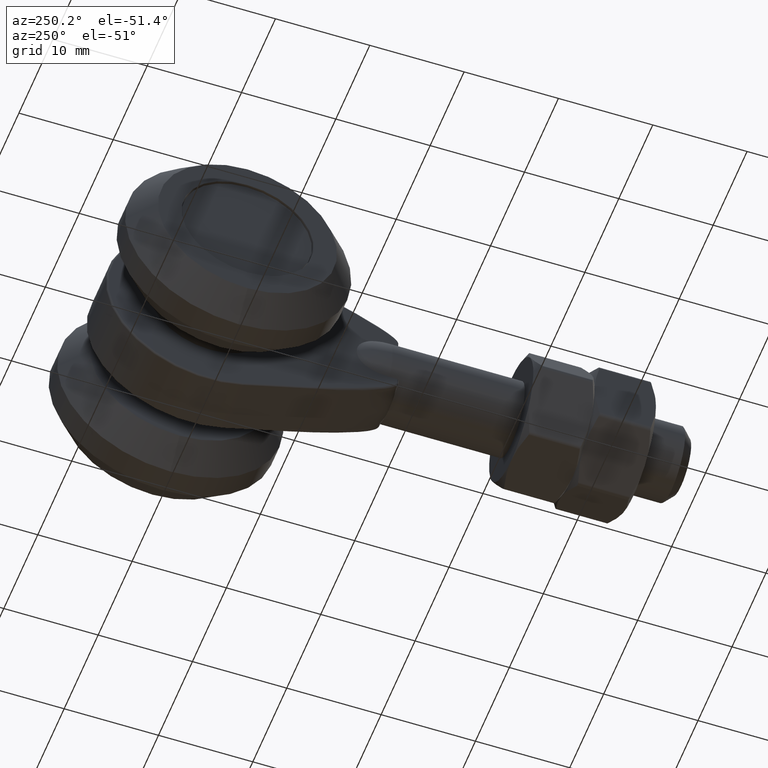
[diagram: clean part render]
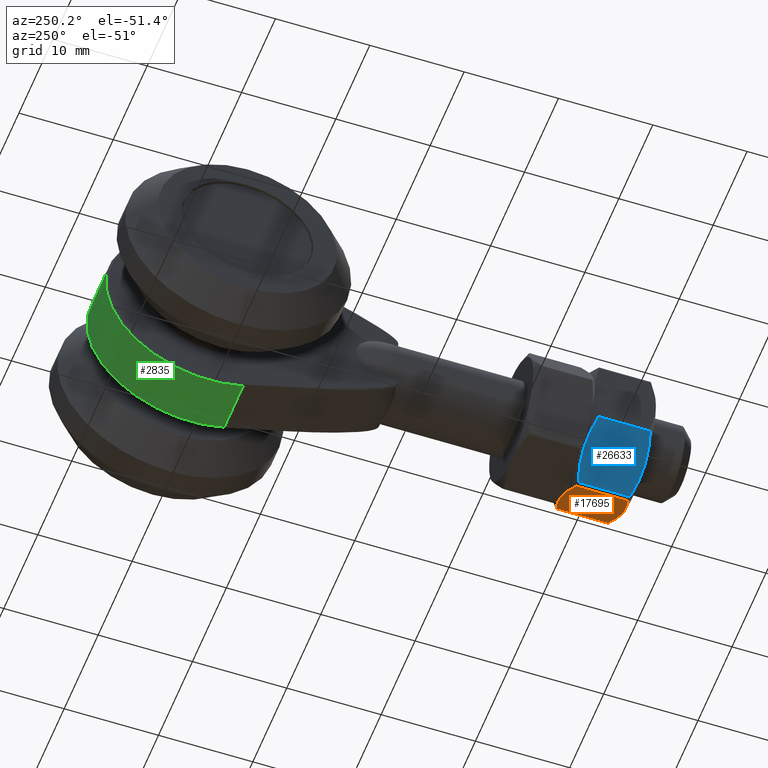
[diagram: same view with three faces highlighted in distinct colors, each labeled with its STEP entity id]
A machine part, auxiliary view with three faces highlighted in distinct colors.
Their STEP definitions:

[orange] entity #17695 — the highlighted planar face has unit normal (-0.5, 0, 0.866).
#760 = CARTESIAN_POINT ( 'NONE',  ( 2.902884496152197347, 2.902718077616393444, 6.499999999999998224 ) ) ;
#864 = VECTOR ( 'NONE', #26952, 1000.000000000000000 ) ;
#1194 = CARTESIAN_POINT ( 'NONE',  ( 1.176513073733645998, -3.202698312935164271, 6.499999999999998224 ) ) ;
#1286 = CARTESIAN_POINT ( 'NONE',  ( 2.902884496152197791, -2.902718077616393000, 6.499999999999998224 ) ) ;
#1656 = CARTESIAN_POINT ( 'NONE',  ( -1.165154007745677456, -3.203824239726178469, 6.499999999999996447 ) ) ;
#1997 = DIRECTION ( 'NONE',  ( 0.000000000000000000, 0.000000000000000000, -1.000000000000000000 ) ) ;
#2070 = B_SPLINE_CURVE_WITH_KNOTS ( 'NONE', 3,
 ( #6137, #3626, #18620, #1656, #18816, #12422 ),
 .UNSPECIFIED., .F., .F.,
 ( 4, 2, 4 ),
 ( 0.006993823165124734773, 0.008742872155213278484, 0.01049192114530182046 ),
 .UNSPECIFIED. ) ;
#2091 = CARTESIAN_POINT ( 'NONE',  ( -3.752776749732568806, 3.250000000000000000, 6.499999999999998224 ) ) ;
#3626 = CARTESIAN_POINT ( 'NONE',  ( -2.898327047151624480, -2.903955596805491979, 6.499999999999998224 ) ) ;
#4208 = EDGE_CURVE ( 'NONE', #26166, #6501, #5429, .T. ) ;
#5429 = B_SPLINE_CURVE_WITH_KNOTS ( 'NONE', 3,
 ( #5545, #16157, #20669, #27205, #18503, #7785 ),
 .UNSPECIFIED., .F., .F.,
 ( 4, 2, 4 ),
 ( 0.006539901453184517564, 0.008284478935818398102, 0.01002905641845227777 ),
 .UNSPECIFIED. ) ;
#5545 = CARTESIAN_POINT ( 'NONE',  ( 0.000000000000000000, 3.250000000000000000, 6.499999999999998224 ) ) ;
#5721 = EDGE_CURVE ( 'NONE', #13495, #9380, #6561, .T. ) ;
#5792 = EDGE_CURVE ( 'NONE', #23980, #13495, #19593, .T. ) ;
#6137 = CARTESIAN_POINT ( 'NONE',  ( -3.464101615138760693, -2.750326475674608417, 6.499999999999998224 ) ) ;
#6314 = ORIENTED_EDGE ( 'NONE', *, *, #18815, .T. ) ;
#6476 = ORIENTED_EDGE ( 'NONE', *, *, #4208, .T. ) ;
#6501 = VERTEX_POINT ( 'NONE', #26798 ) ;
#6561 = LINE ( 'NONE', #22502, #864 ) ;
#7723 = CARTESIAN_POINT ( 'NONE',  ( 0.000000000000000000, -3.250000000000000000, 6.499999999999998224 ) ) ;
#7785 = CARTESIAN_POINT ( 'NONE',  ( -3.464101615138760693, 2.750326475674608417, 6.499999999999998224 ) ) ;
#8451 = PLANE ( 'NONE',  #9958 ) ;
#8581 = EDGE_LOOP ( 'NONE', ( #23713, #18687, #6314, #6476, #20564, #26269 ) ) ;
#9171 = CARTESIAN_POINT ( 'NONE',  ( 0.5843306495695038683, 3.249999999999999556, 6.499999999999997335 ) ) ;
#9380 = VERTEX_POINT ( 'NONE', #9959 ) ;
#9958 = AXIS2_PLACEMENT_3D ( 'NONE', #2091, #1997, #17023 ) ;
#9959 = CARTESIAN_POINT ( 'NONE',  ( 3.464101615137759271, 2.750326475674881088, 6.499999999999998224 ) ) ;
#11067 = CARTESIAN_POINT ( 'NONE',  ( 3.464101615137759271, -2.750326475674881088, 6.499999999999998224 ) ) ;
#12422 = CARTESIAN_POINT ( 'NONE',  ( 0.000000000000000000, -3.250000000000000000, 6.499999999999998224 ) ) ;
#12953 = DIRECTION ( 'NONE',  ( 0.000000000000000000, -1.000000000000000000, 0.000000000000000000 ) ) ;
#13495 = VERTEX_POINT ( 'NONE', #11067 ) ;
#15553 = B_SPLINE_CURVE_WITH_KNOTS ( 'NONE', 3,
 ( #26417, #760, #15667, #22165, #9171, #24337 ),
 .UNSPECIFIED., .F., .F.,
 ( 4, 2, 4 ),
 ( 0.003050666260287162972, 0.004795283856735839401, 0.006539901453184517564 ),
 .UNSPECIFIED. ) ;
#15628 = EDGE_CURVE ( 'NONE', #25982, #23980, #2070, .T. ) ;
#15667 = CARTESIAN_POINT ( 'NONE',  ( 2.334407987368118942, 3.028397719986344327, 6.499999999999999112 ) ) ;
#16157 = CARTESIAN_POINT ( 'NONE',  ( -0.5843172141143634368, 3.249999999999999556, 6.499999999999998224 ) ) ;
#16291 = CARTESIAN_POINT ( 'NONE',  ( 3.464101615137759271, -2.750326475674881088, 6.499999999999998224 ) ) ;
#17023 = DIRECTION ( 'NONE',  ( -1.000000000000000000, 0.000000000000000000, -0.000000000000000000 ) ) ;
#17685 = CARTESIAN_POINT ( 'NONE',  ( 0.000000000000000000, -3.250000000000000000, 6.499999999999998224 ) ) ;
#17695 = ADVANCED_FACE ( 'NONE', ( #22077 ), #8451, .F. ) ;
#18503 = CARTESIAN_POINT ( 'NONE',  ( -2.898327047151625813, 2.903955596805492423, 6.499999999999998224 ) ) ;
#18620 = CARTESIAN_POINT ( 'NONE',  ( -2.320763838972455417, -3.031023087752014344, 6.499999999999998224 ) ) ;
#18687 = ORIENTED_EDGE ( 'NONE', *, *, #5721, .T. ) ;
#18815 = EDGE_CURVE ( 'NONE', #9380, #26166, #15553, .T. ) ;
#18816 = CARTESIAN_POINT ( 'NONE',  ( -0.5843172141143634368, -3.250000000000000444, 6.499999999999998224 ) ) ;
#18965 = EDGE_CURVE ( 'NONE', #6501, #25982, #22029, .T. ) ;
#19593 = B_SPLINE_CURVE_WITH_KNOTS ( 'NONE', 3,
 ( #7723, #22407, #1194, #20224, #1286, #16291 ),
 .UNSPECIFIED., .F., .F.,
 ( 4, 2, 4 ),
 ( 0.01049192114530182046, 0.01224101035202044066, 0.01399009955873906086 ),
 .UNSPECIFIED. ) ;
#19786 = CARTESIAN_POINT ( 'NONE',  ( 0.000000000000000000, 3.250000000000000000, 6.499999999999998224 ) ) ;
#19898 = CARTESIAN_POINT ( 'NONE',  ( -3.464101615137753942, 3.250000000000000000, 6.499999999999998224 ) ) ;
#20224 = CARTESIAN_POINT ( 'NONE',  ( 2.334407987368120274, -3.028397719986342995, 6.499999999999996447 ) ) ;
#20564 = ORIENTED_EDGE ( 'NONE', *, *, #18965, .T. ) ;
#20669 = CARTESIAN_POINT ( 'NONE',  ( -1.165154007745679232, 3.203824239726178913, 6.499999999999998224 ) ) ;
#22029 = LINE ( 'NONE', #19898, #25426 ) ;
#22077 = FACE_OUTER_BOUND ( 'NONE', #8581, .T. ) ;
#22165 = CARTESIAN_POINT ( 'NONE',  ( 1.176513073733644887, 3.202698312935164271, 6.499999999999995559 ) ) ;
#22407 = CARTESIAN_POINT ( 'NONE',  ( 0.5843306495695039793, -3.249999999999999556, 6.499999999999998224 ) ) ;
#22502 = CARTESIAN_POINT ( 'NONE',  ( 3.464101615137759271, 3.250000000000000000, 6.499999999999998224 ) ) ;
#23406 = CARTESIAN_POINT ( 'NONE',  ( -3.464101615138760693, -2.750326475674608417, 6.499999999999998224 ) ) ;
#23713 = ORIENTED_EDGE ( 'NONE', *, *, #5792, .T. ) ;
#23980 = VERTEX_POINT ( 'NONE', #17685 ) ;
#24337 = CARTESIAN_POINT ( 'NONE',  ( 0.000000000000000000, 3.250000000000000000, 6.499999999999998224 ) ) ;
#25426 = VECTOR ( 'NONE', #12953, 1000.000000000000000 ) ;
#25982 = VERTEX_POINT ( 'NONE', #23406 ) ;
#26166 = VERTEX_POINT ( 'NONE', #19786 ) ;
#26269 = ORIENTED_EDGE ( 'NONE', *, *, #15628, .T. ) ;
#26417 = CARTESIAN_POINT ( 'NONE',  ( 3.464101615137759271, 2.750326475674881088, 6.499999999999998224 ) ) ;
#26798 = CARTESIAN_POINT ( 'NONE',  ( -3.464101615138760693, 2.750326475674608417, 6.499999999999998224 ) ) ;
#26952 = DIRECTION ( 'NONE',  ( -0.000000000000000000, 1.000000000000000000, -0.000000000000000000 ) ) ;
#27205 = CARTESIAN_POINT ( 'NONE',  ( -2.320763838972456305, 3.031023087752014344, 6.499999999999996447 ) ) ;

[blue] entity #26633 — the highlighted planar face has unit normal (0.5, 0, 0.866).
#43 = VERTEX_POINT ( 'NONE', #17557 ) ;
#265 = CARTESIAN_POINT ( 'NONE',  ( 5.629165124598849879, -3.250000000000000000, 3.249999999999998668 ) ) ;
#1181 = CARTESIAN_POINT ( 'NONE',  ( 6.793038842262233423, -3.029614908576547361, 1.234111587412953570 ) ) ;
#1452 = CARTESIAN_POINT ( 'NONE',  ( 5.482416541907173091, 3.250000000000001776, 3.504176001160722809 ) ) ;
#1540 = CARTESIAN_POINT ( 'NONE',  ( 5.334965229149904786, 3.238358288205307911, 3.759569166499033166 ) ) ;
#2130 = CARTESIAN_POINT ( 'NONE',  ( 7.361215932168768461, 2.750326475674316651, 0.2499999999982062404 ) ) ;
#2307 = CARTESIAN_POINT ( 'NONE',  ( 5.629165124598849879, 3.250000000000000000, 3.249999999999998668 ) ) ;
#3120 = CARTESIAN_POINT ( 'NONE',  ( 7.361215932167732845, 3.250000000000000000, 0.2499999999999993616 ) ) ;
#3621 = CARTESIAN_POINT ( 'NONE',  ( 5.923365020047803853, -3.238358288205308355, 2.740430833500969499 ) ) ;
#4176 = PLANE ( 'NONE',  #8574 ) ;
#4318 = ORIENTED_EDGE ( 'NONE', *, *, #27242, .T. ) ;
#5471 = CARTESIAN_POINT ( 'NONE',  ( 6.360320613116885013, -3.159567907072294179, 1.983601545653928433 ) ) ;
#6317 = CARTESIAN_POINT ( 'NONE',  ( 3.752776749732572803, 3.250000000000000000, 6.499999999999998224 ) ) ;
#6741 = DIRECTION ( 'NONE',  ( 0.000000000000000000, -1.000000000000000000, 0.000000000000000000 ) ) ;
#7497 = CARTESIAN_POINT ( 'NONE',  ( 4.464303344479565894, -3.058352876056136704, 5.267599786961735475 ) ) ;
#7559 = EDGE_CURVE ( 'NONE', #10946, #17659, #23427, .T. ) ;
#7623 = CARTESIAN_POINT ( 'NONE',  ( 7.078287489049793102, -2.903977949313087503, 0.7400464383866310891 ) ) ;
#8430 = VECTOR ( 'NONE', #6741, 1000.000000000000000 ) ;
#8479 = DIRECTION ( 'NONE',  ( -0.8660254037844387076, 0.000000000000000000, -0.5000000000000000000 ) ) ;
#8574 = AXIS2_PLACEMENT_3D ( 'NONE', #6317, #8479, #27882 ) ;
#9283 = ORIENTED_EDGE ( 'NONE', *, *, #19514, .T. ) ;
#10153 = CARTESIAN_POINT ( 'NONE',  ( 6.215272553528206956, -3.193121803873831599, 2.234832154400796522 ) ) ;
#10946 = VERTEX_POINT ( 'NONE', #2307 ) ;
#11335 = DIRECTION ( 'NONE',  ( -0.000000000000000000, 1.000000000000000000, -0.000000000000000000 ) ) ;
#11518 = CARTESIAN_POINT ( 'NONE',  ( 5.629165124598849879, 3.250000000000000000, 3.249999999999998668 ) ) ;
#11537 = VECTOR ( 'NONE', #11335, 1000.000000000000000 ) ;
#12537 = B_SPLINE_CURVE_WITH_KNOTS ( 'NONE', 3,
 ( #23072, #22780, #3621, #10153, #5471, #1181, #7623, #22685 ),
 .UNSPECIFIED., .F., .F.,
 ( 4, 2, 2, 4 ),
 ( 0.003797433802554436334, 0.004668978453557804872, 0.005540523104561172543, 0.007283612406567908752 ),
 .UNSPECIFIED. ) ;
#13518 = EDGE_LOOP ( 'NONE', ( #26855, #9283, #18430, #17038, #4318, #21992 ) ) ;
#13583 = LINE ( 'NONE', #3120, #11537 ) ;
#13617 = CARTESIAN_POINT ( 'NONE',  ( 6.218478719796789456, 3.250000000000000888, 2.229278911526099805 ) ) ;
#13706 = CARTESIAN_POINT ( 'NONE',  ( 5.629165124598849879, -3.250000000000000000, 3.249999999999998668 ) ) ;
#13755 = B_SPLINE_CURVE_WITH_KNOTS ( 'NONE', 3,
 ( #22468, #24277, #13617, #11518 ),
 .UNSPECIFIED., .F., .F.,
 ( 4, 4 ),
 ( 0.0002974810109325098820, 0.003797433802554441972 ),
 .UNSPECIFIED. ) ;
#13777 = FACE_OUTER_BOUND ( 'NONE', #13518, .T. ) ;
#14761 = CARTESIAN_POINT ( 'NONE',  ( 4.898009636080823626, 3.159567907072294624, 4.516398454346072455 ) ) ;
#14860 = CARTESIAN_POINT ( 'NONE',  ( 4.180042760147918202, 2.903977949313087503, 5.759953561613368578 ) ) ;
#15959 = CARTESIAN_POINT ( 'NONE',  ( 3.897114317028943287, -2.750326475674317539, 6.250000000001792344 ) ) ;
#16212 = CARTESIAN_POINT ( 'NONE',  ( 7.361215932167731957, -2.750326475674879312, 0.2500000000000005551 ) ) ;
#17021 = CARTESIAN_POINT ( 'NONE',  ( 4.465291406935474328, 3.029614908576546028, 5.265888412587043099 ) ) ;
#17038 = ORIENTED_EDGE ( 'NONE', *, *, #7559, .T. ) ;
#17451 = CARTESIAN_POINT ( 'NONE',  ( 3.897114317029978903, 3.250000000000000000, 6.249999999999998224 ) ) ;
#17557 = CARTESIAN_POINT ( 'NONE',  ( 3.897114317028943287, -2.750326475674317539, 6.250000000001792344 ) ) ;
#17659 = VERTEX_POINT ( 'NONE', #27686 ) ;
#18430 = ORIENTED_EDGE ( 'NONE', *, *, #19499, .T. ) ;
#19166 = CARTESIAN_POINT ( 'NONE',  ( 3.897114317029978903, 2.750326475674880200, 6.249999999999998224 ) ) ;
#19499 = EDGE_CURVE ( 'NONE', #25057, #10946, #13755, .T. ) ;
#19514 = EDGE_CURVE ( 'NONE', #27456, #25057, #13583, .T. ) ;
#21001 = B_SPLINE_CURVE_WITH_KNOTS ( 'NONE', 3,
 ( #15959, #7497, #26720, #13706 ),
 .UNSPECIFIED., .F., .F.,
 ( 4, 4 ),
 ( 0.0002974810109325090146, 0.003797433802554436334 ),
 .UNSPECIFIED. ) ;
#21992 = ORIENTED_EDGE ( 'NONE', *, *, #22854, .T. ) ;
#22468 = CARTESIAN_POINT ( 'NONE',  ( 7.361215932168768461, 2.750326475674316651, 0.2499999999982062404 ) ) ;
#22685 = CARTESIAN_POINT ( 'NONE',  ( 7.361215932167731957, -2.750326475674879312, 0.2500000000000005551 ) ) ;
#22780 = CARTESIAN_POINT ( 'NONE',  ( 5.775913707290537324, -3.250000000000000888, 2.995823998839281632 ) ) ;
#22854 = EDGE_CURVE ( 'NONE', #43, #23920, #21001, .T. ) ;
#23055 = CARTESIAN_POINT ( 'NONE',  ( 5.629165124598849879, 3.250000000000000000, 3.249999999999998668 ) ) ;
#23072 = CARTESIAN_POINT ( 'NONE',  ( 5.629165124598849879, -3.250000000000000000, 3.249999999999998668 ) ) ;
#23427 = B_SPLINE_CURVE_WITH_KNOTS ( 'NONE', 3,
 ( #23055, #1452, #1540, #25215, #14761, #17021, #14860, #19166 ),
 .UNSPECIFIED., .F., .F.,
 ( 4, 2, 2, 4 ),
 ( 0.003797433802554441972, 0.004668978453557808342, 0.005540523104561176013, 0.007283612406567910487 ),
 .UNSPECIFIED. ) ;
#23452 = EDGE_CURVE ( 'NONE', #23920, #27456, #12537, .T. ) ;
#23920 = VERTEX_POINT ( 'NONE', #265 ) ;
#24277 = CARTESIAN_POINT ( 'NONE',  ( 6.794026904718144522, 3.058352876056135816, 1.232400213038263415 ) ) ;
#25057 = VERTEX_POINT ( 'NONE', #2130 ) ;
#25215 = CARTESIAN_POINT ( 'NONE',  ( 5.043057695669499019, 3.193121803873831155, 4.265167845599203922 ) ) ;
#25293 = LINE ( 'NONE', #17451, #8430 ) ;
#26633 = ADVANCED_FACE ( 'NONE', ( #13777 ), #4176, .F. ) ;
#26720 = CARTESIAN_POINT ( 'NONE',  ( 5.039851529400920072, -3.250000000000000888, 4.270721088473901972 ) ) ;
#26855 = ORIENTED_EDGE ( 'NONE', *, *, #23452, .T. ) ;
#27242 = EDGE_CURVE ( 'NONE', #17659, #43, #25293, .T. ) ;
#27456 = VERTEX_POINT ( 'NONE', #16212 ) ;
#27686 = CARTESIAN_POINT ( 'NONE',  ( 3.897114317029978903, 2.750326475674880200, 6.249999999999998224 ) ) ;
#27882 = DIRECTION ( 'NONE',  ( -0.4999999999999999445, 0.000000000000000000, 0.8660254037844385966 ) ) ;

[green] entity #2835 — the highlighted cylindrical surface (partial cylindrical patch) has radius 11 mm, axis along (-1, -0, -0).
#716 = DIRECTION ( 'NONE',  ( 0.000000000000000000, 0.000000000000000000, -1.000000000000000000 ) ) ;
#735 = ORIENTED_EDGE ( 'NONE', *, *, #13669, .F. ) ;
#1282 = CARTESIAN_POINT ( 'NONE',  ( -2.799999999999999378, 16.42029344312601324, -10.40123555000429789 ) ) ;
#1773 = ORIENTED_EDGE ( 'NONE', *, *, #17687, .T. ) ;
#2240 = LINE ( 'NONE', #16930, #5589 ) ;
#2268 = DIRECTION ( 'NONE',  ( -1.000000000000000000, -0.000000000000000000, -0.000000000000000000 ) ) ;
#2835 = ADVANCED_FACE ( 'NONE', ( #19420 ), #21460, .T. ) ;
#4053 = AXIS2_PLACEMENT_3D ( 'NONE', #11417, #26243, #13331 ) ;
#5339 = VECTOR ( 'NONE', #15847, 1000.000000000000000 ) ;
#5589 = VECTOR ( 'NONE', #2268, 1000.000000000000000 ) ;
#6590 = VERTEX_POINT ( 'NONE', #14072 ) ;
#7641 = CARTESIAN_POINT ( 'NONE',  ( 3.000000000000000000, 20.00000000000000355, -8.948584441246368620E-15 ) ) ;
#9687 = LINE ( 'NONE', #15755, #5339 ) ;
#10874 = VERTEX_POINT ( 'NONE', #12343 ) ;
#11354 = CARTESIAN_POINT ( 'NONE',  ( 2.799999999999999822, 20.00000000000000355, -8.948584441246368620E-15 ) ) ;
#11417 = CARTESIAN_POINT ( 'NONE',  ( -2.799999999999999378, 20.00000000000000355, -8.948584441246368620E-15 ) ) ;
#11627 = ORIENTED_EDGE ( 'NONE', *, *, #16641, .T. ) ;
#12343 = CARTESIAN_POINT ( 'NONE',  ( 2.799999999999999822, 16.42029344312602390, 10.40123555000430855 ) ) ;
#13331 = DIRECTION ( 'NONE',  ( 0.000000000000000000, 0.000000000000000000, -1.000000000000000000 ) ) ;
#13543 = DIRECTION ( 'NONE',  ( -1.000000000000000000, -0.000000000000000000, -0.000000000000000000 ) ) ;
#13669 = EDGE_CURVE ( 'NONE', #10874, #6590, #9687, .T. ) ;
#14072 = CARTESIAN_POINT ( 'NONE',  ( -2.799999999999999378, 16.42029344312602390, 10.40123555000430855 ) ) ;
#14472 = EDGE_LOOP ( 'NONE', ( #735, #11627, #1773, #24997 ) ) ;
#15755 = CARTESIAN_POINT ( 'NONE',  ( 3.000000000000000000, 16.42029344312602390, 10.40123555000430855 ) ) ;
#15847 = DIRECTION ( 'NONE',  ( -1.000000000000000000, -0.000000000000000000, -0.000000000000000000 ) ) ;
#16641 = EDGE_CURVE ( 'NONE', #10874, #25540, #23124, .T. ) ;
#16930 = CARTESIAN_POINT ( 'NONE',  ( 3.000000000000000000, 16.42029344312601324, -10.40123555000429789 ) ) ;
#17336 = AXIS2_PLACEMENT_3D ( 'NONE', #11354, #13543, #716 ) ;
#17687 = EDGE_CURVE ( 'NONE', #25540, #18192, #2240, .T. ) ;
#18192 = VERTEX_POINT ( 'NONE', #1282 ) ;
#19420 = FACE_OUTER_BOUND ( 'NONE', #14472, .T. ) ;
#21460 = CYLINDRICAL_SURFACE ( 'NONE', #25145, 11.00000000000000711 ) ;
#22709 = DIRECTION ( 'NONE',  ( 0.000000000000000000, 0.000000000000000000, 1.000000000000000000 ) ) ;
#23124 = CIRCLE ( 'NONE', #17336, 11.00000000000000711 ) ;
#24387 = EDGE_CURVE ( 'NONE', #18192, #6590, #26249, .T. ) ;
#24946 = CARTESIAN_POINT ( 'NONE',  ( 2.799999999999999822, 16.42029344312601324, -10.40123555000429789 ) ) ;
#24997 = ORIENTED_EDGE ( 'NONE', *, *, #24387, .T. ) ;
#25145 = AXIS2_PLACEMENT_3D ( 'NONE', #7641, #27443, #22709 ) ;
#25540 = VERTEX_POINT ( 'NONE', #24946 ) ;
#26243 = DIRECTION ( 'NONE',  ( 1.000000000000000000, 0.000000000000000000, 0.000000000000000000 ) ) ;
#26249 = CIRCLE ( 'NONE', #4053, 11.00000000000000711 ) ;
#27443 = DIRECTION ( 'NONE',  ( -1.000000000000000000, -0.000000000000000000, -0.000000000000000000 ) ) ;